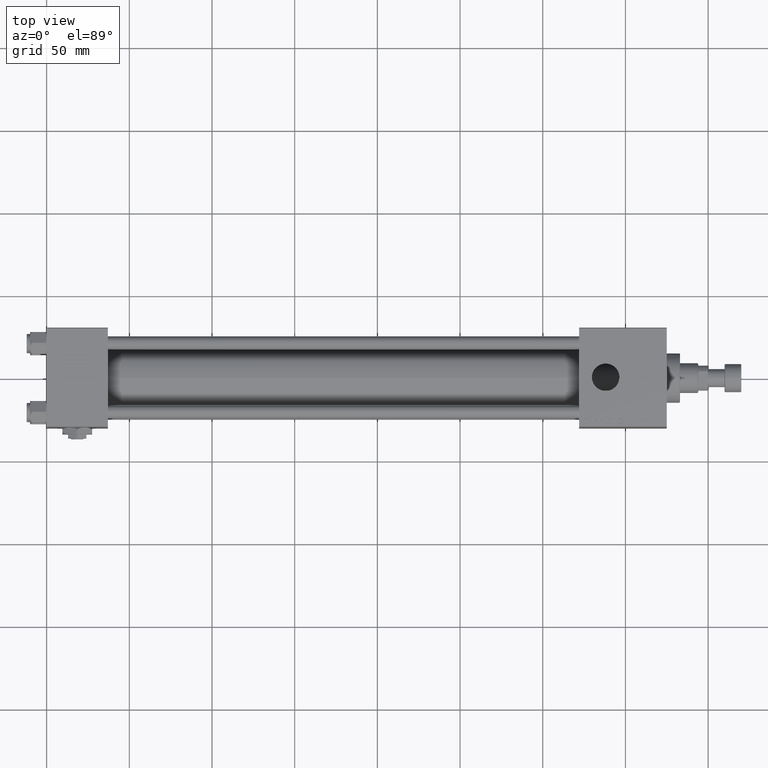
[diagram: clean part render]
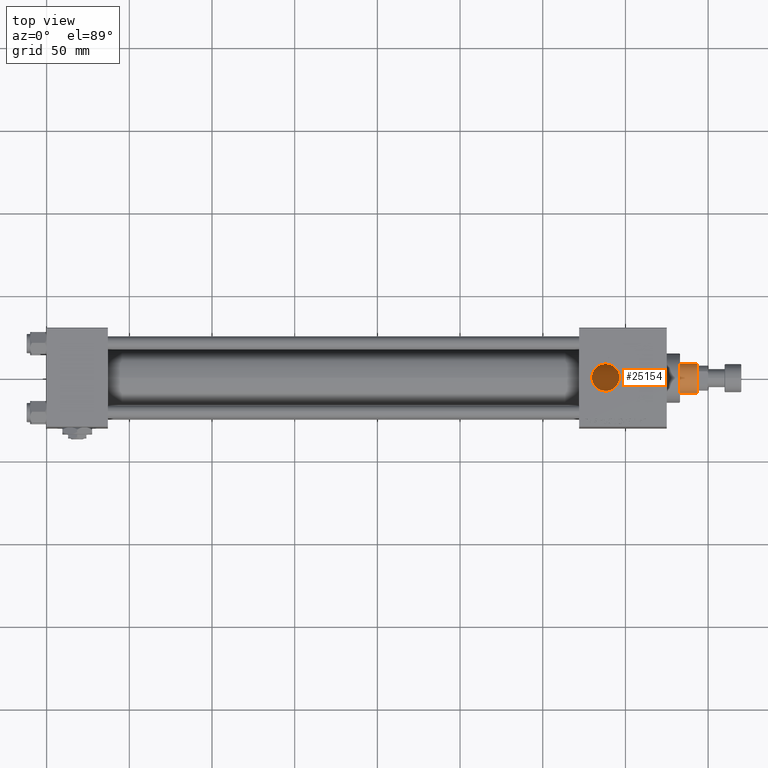
[diagram: same view with one face highlighted and labeled with its STEP entity id]
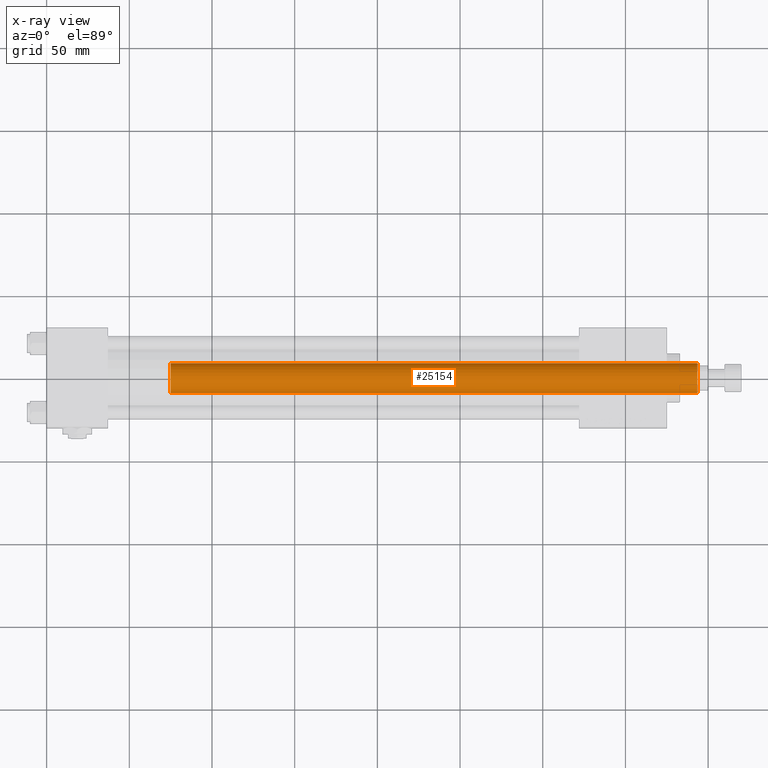
[diagram: x-ray of the same camera — body ghosted, the highlighted face saturated]
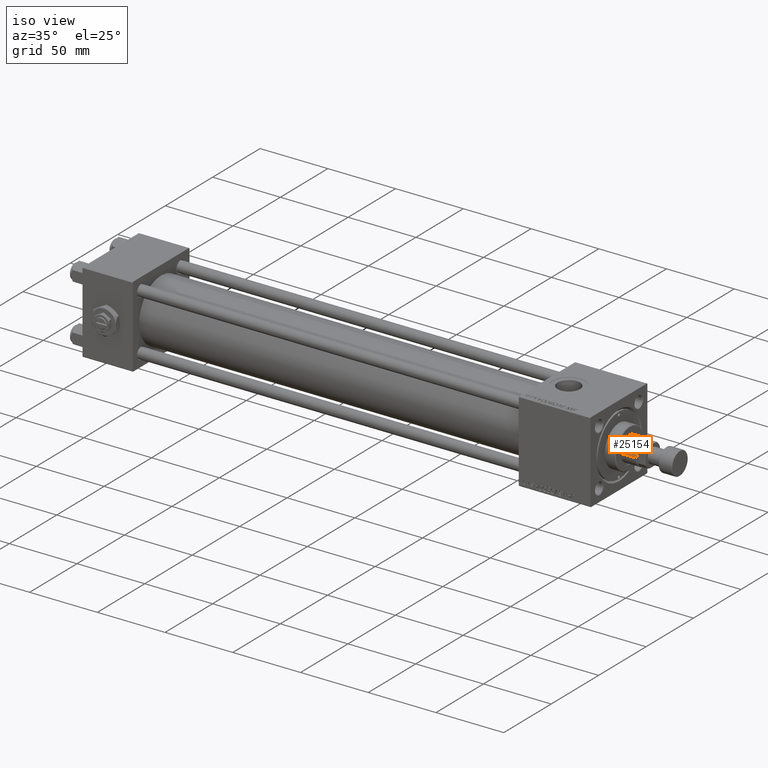
[diagram: same view with one face highlighted and labeled with its STEP entity id]
A machine part, top view. The second image highlights one B-rep face of the part: STEP entity #25154.
The next image is the same camera in x-ray: the body ghosted, the highlighted face saturated — about 0% of this face is hidden behind the body in this view.
A second angle (iso view) of the same face is appended — the face is thin or edge-on in the first view.
In plain terms, the highlighted cylindrical surface (edge-blend (fillet) strip) has radius 9 mm, axis along (-1, 0, 0).
Its self-contained STEP definition (entity closure, byte-faithful):
#324 = CARTESIAN_POINT ( 'NONE',  ( 0.000000000000000000, 0.000000000000000000, 357.0000000000000000 ) ) ;
#2337 = CARTESIAN_POINT ( 'NONE',  ( -9.000000000000000000, 0.000000000000000000, 357.0000000000000000 ) ) ;
#4098 = VECTOR ( 'NONE', #39120, 1000.000000000000000 ) ;
#6242 = CARTESIAN_POINT ( 'NONE',  ( -9.000000000000000000, 0.000000000000000000, 38.00000000000000000 ) ) ;
#8854 = VERTEX_POINT ( 'NONE', #37317 ) ;
#11032 = EDGE_LOOP ( 'NONE', ( #32737, #13206, #43089, #29192 ) ) ;
#11616 = AXIS2_PLACEMENT_3D ( 'NONE', #324, #20862, #16584 ) ;
#12783 = DIRECTION ( 'NONE',  ( 1.000000000000000000, 0.000000000000000000, 0.000000000000000000 ) ) ;
#13206 = ORIENTED_EDGE ( 'NONE', *, *, #14692, .T. ) ;
#14090 = VERTEX_POINT ( 'NONE', #27733 ) ;
#14692 = EDGE_CURVE ( 'NONE', #8854, #43781, #20636, .T. ) ;
#16584 = DIRECTION ( 'NONE',  ( -1.000000000000000000, 0.000000000000000000, 0.000000000000000000 ) ) ;
#20023 = EDGE_CURVE ( 'NONE', #43781, #28395, #34627, .T. ) ;
#20636 = CIRCLE ( 'NONE', #50465, 9.000000000000000000 ) ;
#20862 = DIRECTION ( 'NONE',  ( -0.000000000000000000, -0.000000000000000000, -1.000000000000000000 ) ) ;
#24411 = DIRECTION ( 'NONE',  ( 0.000000000000000000, 0.000000000000000000, -1.000000000000000000 ) ) ;
#25154 = ADVANCED_FACE ( 'NONE', ( #36889 ), #33656, .T. ) ;
#26110 = DIRECTION ( 'NONE',  ( -0.000000000000000000, -0.000000000000000000, -1.000000000000000000 ) ) ;
#27733 = CARTESIAN_POINT ( 'NONE',  ( 9.000000000000000000, 1.102182119232617714E-15, 38.00000000000000000 ) ) ;
#28395 = VERTEX_POINT ( 'NONE', #6242 ) ;
#28528 = VECTOR ( 'NONE', #26110, 1000.000000000000000 ) ;
#29192 = ORIENTED_EDGE ( 'NONE', *, *, #37516, .T. ) ;
#30124 = DIRECTION ( 'NONE',  ( 0.000000000000000000, 0.000000000000000000, 1.000000000000000000 ) ) ;
#31158 = EDGE_CURVE ( 'NONE', #8854, #14090, #50604, .T. ) ;
#31950 = CARTESIAN_POINT ( 'NONE',  ( -9.000000000000000000, 0.000000000000000000, 356.5000000000000568 ) ) ;
#32737 = ORIENTED_EDGE ( 'NONE', *, *, #31158, .F. ) ;
#33656 = CYLINDRICAL_SURFACE ( 'NONE', #11616, 9.000000000000000000 ) ;
#34627 = LINE ( 'NONE', #2337, #28528 ) ;
#35609 = CARTESIAN_POINT ( 'NONE',  ( 0.000000000000000000, 0.000000000000000000, 356.5000000000000568 ) ) ;
#36889 = FACE_OUTER_BOUND ( 'NONE', #11032, .T. ) ;
#37317 = CARTESIAN_POINT ( 'NONE',  ( 9.000000000000000000, 1.102182119232617714E-15, 356.5000000000000568 ) ) ;
#37516 = EDGE_CURVE ( 'NONE', #28395, #14090, #38061, .T. ) ;
#38061 = CIRCLE ( 'NONE', #43184, 9.000000000000000000 ) ;
#38336 = CARTESIAN_POINT ( 'NONE',  ( 9.000000000000000000, 1.102182119232617714E-15, 357.0000000000000000 ) ) ;
#39120 = DIRECTION ( 'NONE',  ( -0.000000000000000000, -0.000000000000000000, -1.000000000000000000 ) ) ;
#40692 = DIRECTION ( 'NONE',  ( 1.000000000000000000, 0.000000000000000000, 0.000000000000000000 ) ) ;
#43089 = ORIENTED_EDGE ( 'NONE', *, *, #20023, .T. ) ;
#43184 = AXIS2_PLACEMENT_3D ( 'NONE', #45362, #30124, #12783 ) ;
#43781 = VERTEX_POINT ( 'NONE', #31950 ) ;
#45362 = CARTESIAN_POINT ( 'NONE',  ( 0.000000000000000000, 0.000000000000000000, 38.00000000000000000 ) ) ;
#50465 = AXIS2_PLACEMENT_3D ( 'NONE', #35609, #24411, #40692 ) ;
#50604 = LINE ( 'NONE', #38336, #4098 ) ;